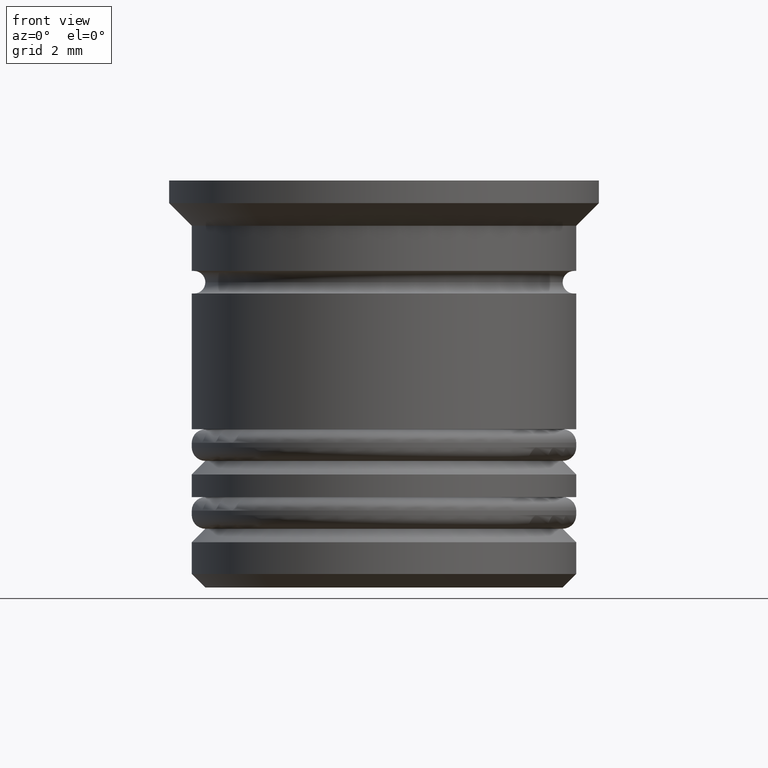
[diagram: clean part render]
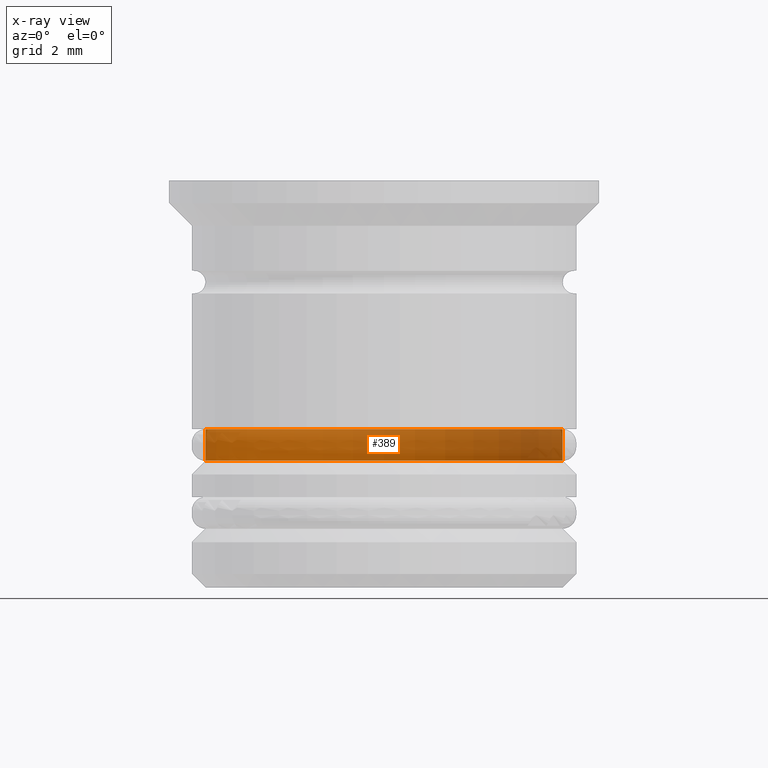
[diagram: x-ray — body ghosted, one internal face saturated and labeled with its STEP entity id]
A machine part, front view, then the same camera in x-ray: the body is ghosted and one INTERNAL B-rep face — a face not visible from any outside direction — is saturated and labeled: STEP entity #389.
In plain terms, the highlighted cylindrical surface (partial cylindrical patch) has radius 3.95 mm, axis along (-0, -0, 1).
Its self-contained STEP definition (entity closure, byte-faithful):
#67 = EDGE_CURVE ( 'NONE', #1399, #714, #537, .T. ) ;
#192 = VECTOR ( 'NONE', #657, 1000.000000000000000 ) ;
#219 = AXIS2_PLACEMENT_3D ( 'NONE', #2015, #1547, #1416 ) ;
#233 = ORIENTED_EDGE ( 'NONE', *, *, #1910, .F. ) ;
#343 = CIRCLE ( 'NONE', #1960, 3.950000000000000178 ) ;
#345 = DIRECTION ( 'NONE',  ( -0.000000000000000000, -0.000000000000000000, 1.000000000000000000 ) ) ;
#389 = ADVANCED_FACE ( 'NONE', ( #928 ), #1535, .T. ) ;
#449 = DIRECTION ( 'NONE',  ( -0.000000000000000000, -0.000000000000000000, 1.000000000000000000 ) ) ;
#537 = LINE ( 'NONE', #1051, #1267 ) ;
#546 = CARTESIAN_POINT ( 'NONE',  ( 3.950000000000000178, 0.000000000000000000, -5.499999999999999112 ) ) ;
#657 = DIRECTION ( 'NONE',  ( -0.000000000000000000, -0.000000000000000000, 1.000000000000000000 ) ) ;
#714 = VERTEX_POINT ( 'NONE', #546 ) ;
#823 = CARTESIAN_POINT ( 'NONE',  ( -3.950000000000000178, 4.837354856632045057E-16, 0.000000000000000000 ) ) ;
#876 = EDGE_CURVE ( 'NONE', #1727, #940, #1913, .T. ) ;
#895 = CARTESIAN_POINT ( 'NONE',  ( -3.950000000000000178, 4.837354856632045057E-16, -6.200000000000004619 ) ) ;
#928 = FACE_OUTER_BOUND ( 'NONE', #1473, .T. ) ;
#940 = VERTEX_POINT ( 'NONE', #1604 ) ;
#955 = DIRECTION ( 'NONE',  ( 1.000000000000000000, 0.000000000000000000, 0.000000000000000000 ) ) ;
#1051 = CARTESIAN_POINT ( 'NONE',  ( 3.950000000000000178, 0.000000000000000000, 0.000000000000000000 ) ) ;
#1131 = CARTESIAN_POINT ( 'NONE',  ( 0.000000000000000000, 0.000000000000000000, -5.499999999999999112 ) ) ;
#1227 = CARTESIAN_POINT ( 'NONE',  ( 0.000000000000000000, 0.000000000000000000, -6.200000000000004619 ) ) ;
#1267 = VECTOR ( 'NONE', #1679, 1000.000000000000000 ) ;
#1272 = AXIS2_PLACEMENT_3D ( 'NONE', #1131, #345, #955 ) ;
#1294 = ORIENTED_EDGE ( 'NONE', *, *, #67, .F. ) ;
#1399 = VERTEX_POINT ( 'NONE', #1406 ) ;
#1406 = CARTESIAN_POINT ( 'NONE',  ( 3.950000000000000178, 0.000000000000000000, -6.200000000000004619 ) ) ;
#1416 = DIRECTION ( 'NONE',  ( 1.000000000000000000, 0.000000000000000000, 0.000000000000000000 ) ) ;
#1473 = EDGE_LOOP ( 'NONE', ( #1790, #1607, #233, #1294 ) ) ;
#1535 = CYLINDRICAL_SURFACE ( 'NONE', #219, 3.950000000000000178 ) ;
#1547 = DIRECTION ( 'NONE',  ( -0.000000000000000000, -0.000000000000000000, 1.000000000000000000 ) ) ;
#1604 = CARTESIAN_POINT ( 'NONE',  ( -3.950000000000000178, 4.837354856632045057E-16, -5.499999999999999112 ) ) ;
#1607 = ORIENTED_EDGE ( 'NONE', *, *, #876, .T. ) ;
#1679 = DIRECTION ( 'NONE',  ( -0.000000000000000000, -0.000000000000000000, 1.000000000000000000 ) ) ;
#1727 = VERTEX_POINT ( 'NONE', #895 ) ;
#1749 = EDGE_CURVE ( 'NONE', #1399, #1727, #343, .T. ) ;
#1790 = ORIENTED_EDGE ( 'NONE', *, *, #1749, .T. ) ;
#1901 = CIRCLE ( 'NONE', #1272, 3.950000000000000178 ) ;
#1910 = EDGE_CURVE ( 'NONE', #714, #940, #1901, .T. ) ;
#1913 = LINE ( 'NONE', #823, #192 ) ;
#1960 = AXIS2_PLACEMENT_3D ( 'NONE', #1227, #449, #2016 ) ;
#2015 = CARTESIAN_POINT ( 'NONE',  ( 0.000000000000000000, 0.000000000000000000, 0.000000000000000000 ) ) ;
#2016 = DIRECTION ( 'NONE',  ( -1.000000000000000000, 0.000000000000000000, 0.000000000000000000 ) ) ;